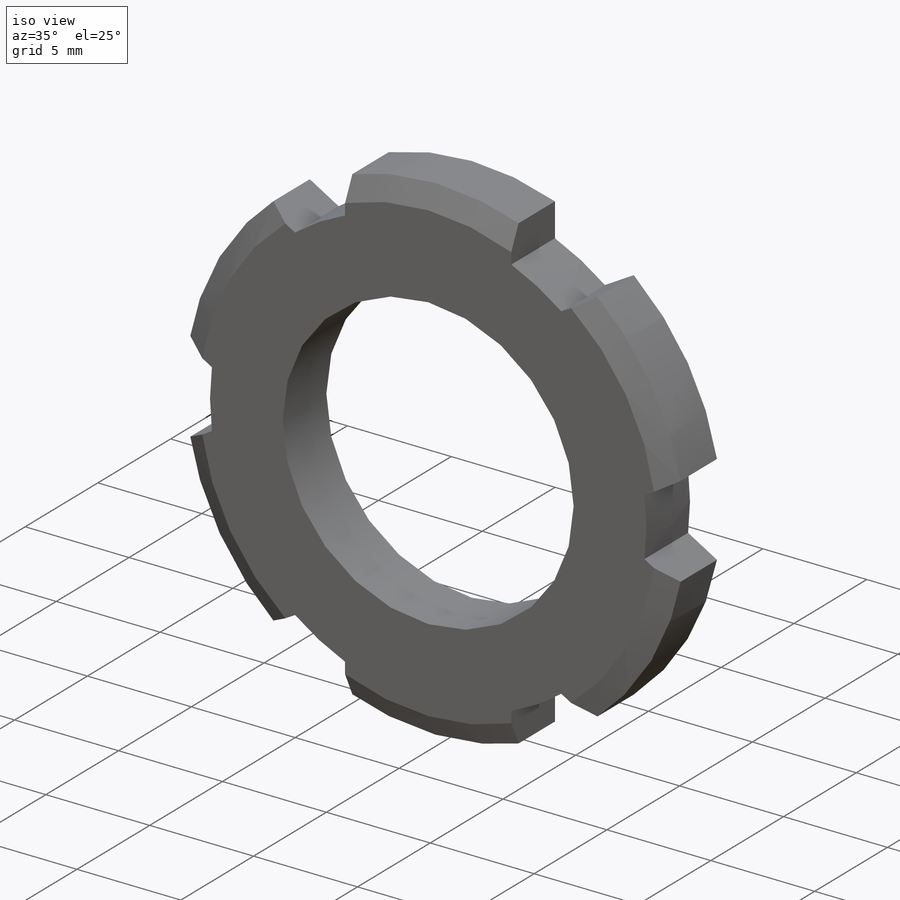
[diagram: iso view]
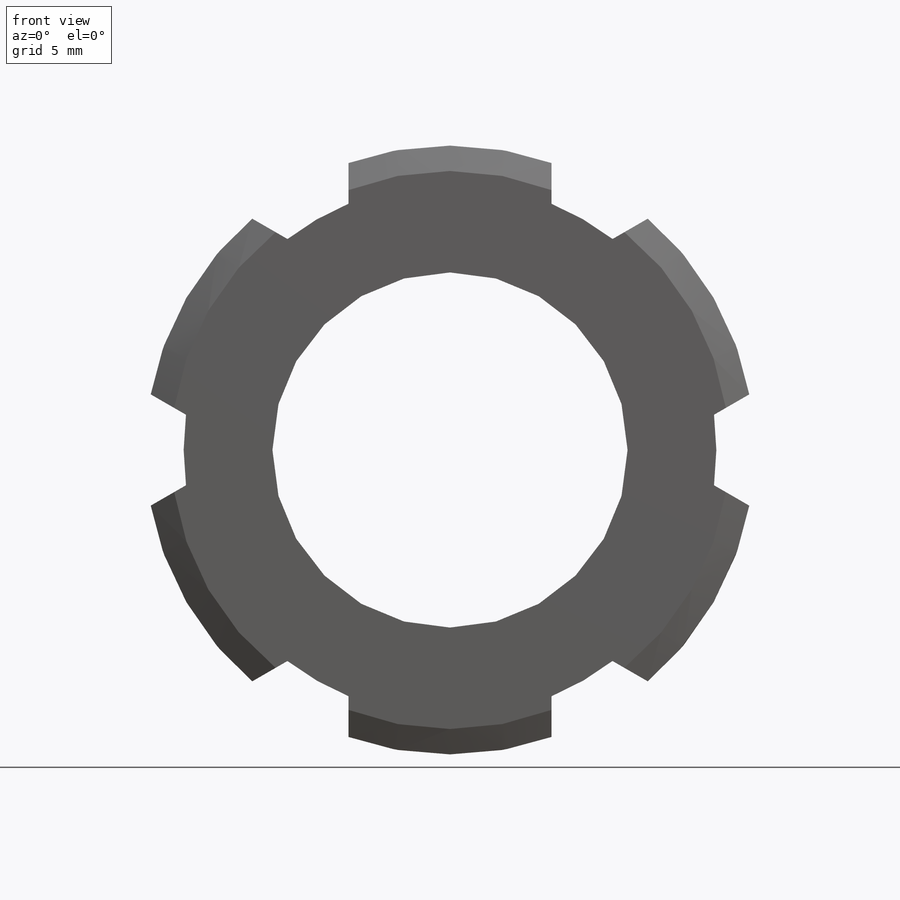
[diagram: front view]
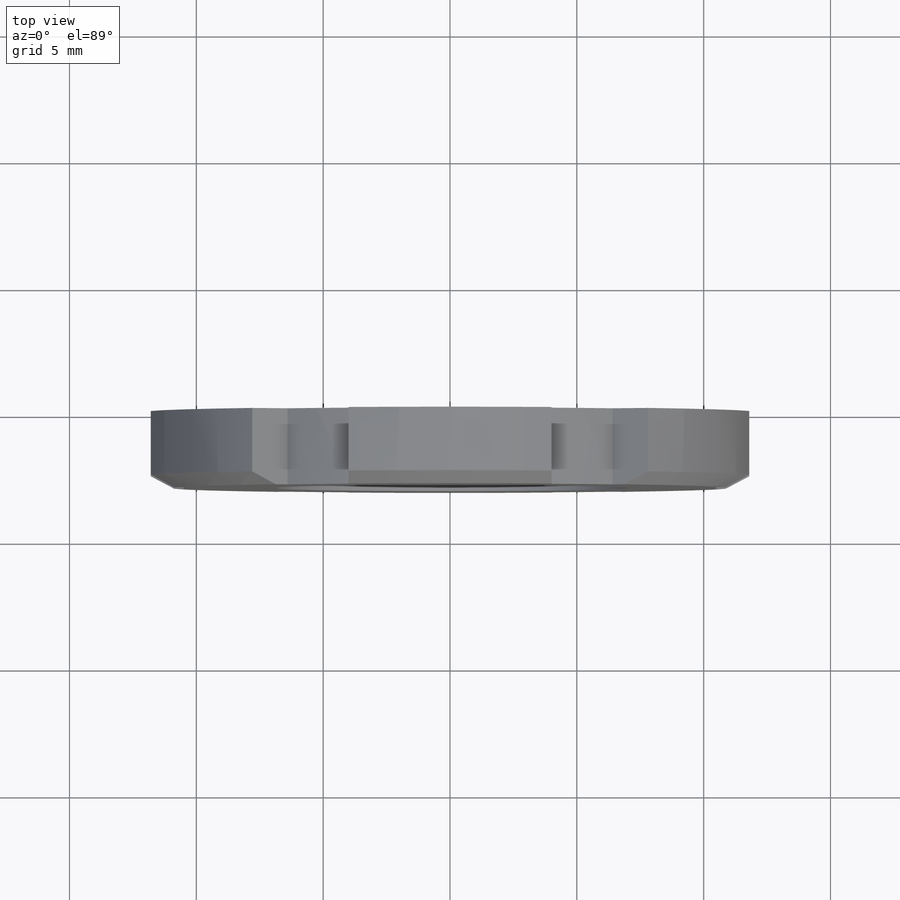
[diagram: top view]
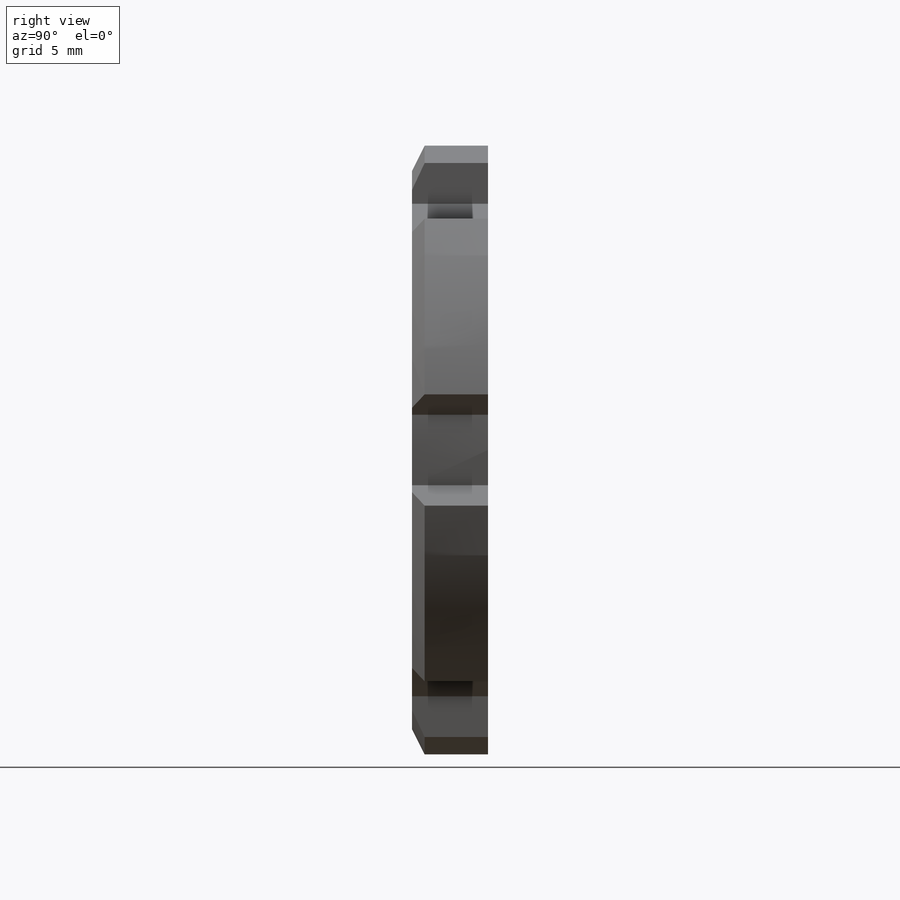
[diagram: right view]
SOLIDWORKS PART (.sldprt)
format: sldprt  version: not decoded by parser v0  size: 269,312 bytes
history: native  units: mm
features: plane x3, sketch x3, material x1, extrude x1, hole x1, thread x1, chamfer x1 (+12 scaffold rows collapsed)
feature tree (23):
  scaffold x12  (default folders/planes/origin — collapsed)
  material  "Alliage 7079"
  plane  "Face"
  plane  "Dessus"
  plane  "Droite"
  sketch  "Esquisse1"  dims[D1=21.0mm D2=24.0mm D3=8.0mm]
  extrude  "Extrusion1"  Depth=3mm
  hole  "Trou taraudé M161"  Diameter=14mm Depth=3mm
  sketch  "Esquisse3"
  sketch  "Esquisse2"  dims[hole-wizard template sketch: 59 standard entries collapsed; hole parameters kept: c18.Diamètre du trou pour taraudage jusqu'au prochain=14.0mm c18.Profondeur du trou pour taraudage jusqu'au prochain=3.0mm]
  thread  "Filetage de perçage1"  Diameter=16mm  [1 undecoded]
  chamfer  "Chanfrein2"  Distance=0.5mm
decode coverage: 6 of 7 modeling features carry decoded parameters
note: ~ marks probable driven/reference dimensions
note: 1 parameter value undecoded
note: suppression state not decoded; provenance and decode notes live in map.json
